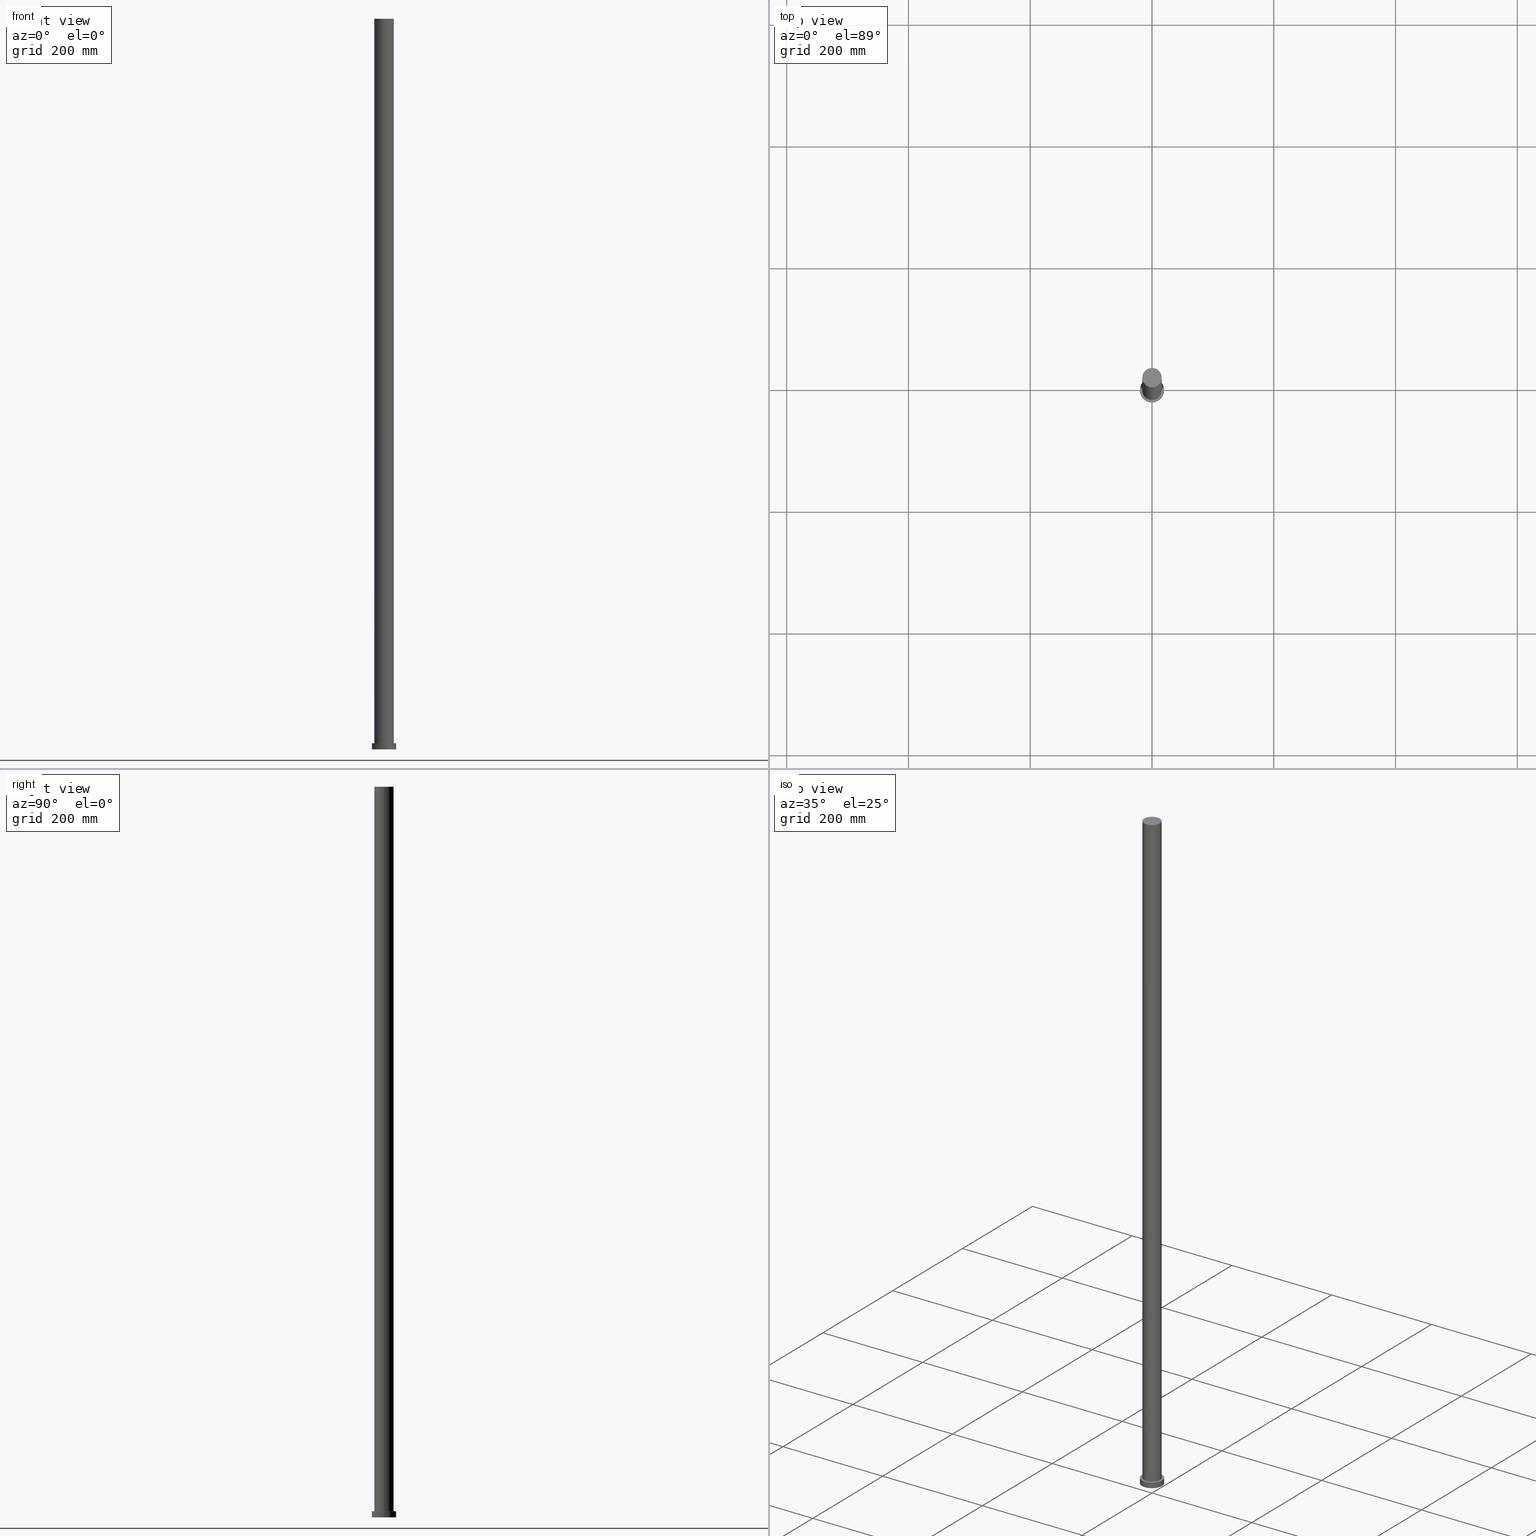
[diagram: canonical four-view strip — front | top / right | iso, engineering-drawing reading convention]
A machine part, canonical four-view strip (front | top / right | iso — engineering-drawing reading convention). The complete STEP part file that produces these views, byte-faithful:
ISO-10303-21;
HEADER;
FILE_DESCRIPTION (( 'STEP AP203' ),
    '1' );
FILE_NAME ('adc3.STEP',
    '2023-02-13T07:28:14',
    ( '' ),
    ( '' ),
    'SwSTEP 2.0',
    'SolidWorks 2019',
    '' );
FILE_SCHEMA (( 'CONFIG_CONTROL_DESIGN' ));
ENDSEC;

DATA;
#1 = DIRECTION ( 'NONE',  ( 0.000000000000000000, 0.000000000000000000, 1.000000000000000000 ) ) ;
#2 = DIRECTION ( 'NONE',  ( -0.000000000000000000, -0.000000000000000000, -1.000000000000000000 ) ) ;
#3 = AXIS2_PLACEMENT_3D ( 'NONE', #54, #159, #237 ) ;
#4 = PERSON_AND_ORGANIZATION ( #178, #148 ) ;
#5 = DIRECTION ( 'NONE',  ( -0.000000000000000000, -0.000000000000000000, -1.000000000000000000 ) ) ;
#6 = CARTESIAN_POINT ( 'NONE',  ( -16.00000000000000000, 0.000000000000000000, 1200.000000000000000 ) ) ;
#7 = PERSON_AND_ORGANIZATION ( #178, #148 ) ;
#8 = DIRECTION ( 'NONE',  ( -0.000000000000000000, -0.000000000000000000, -1.000000000000000000 ) ) ;
#9 = FACE_OUTER_BOUND ( 'NONE', #239, .T. ) ;
#10 = APPROVAL_PERSON_ORGANIZATION ( #4, #146, #24 ) ;
#11 = EDGE_CURVE ( 'NONE', #182, #208, #14, .T. ) ;
#12 = FACE_OUTER_BOUND ( 'NONE', #187, .T. ) ;
#13 = CC_DESIGN_PERSON_AND_ORGANIZATION_ASSIGNMENT ( #47, #50, ( #102 ) ) ;
#14 = CIRCLE ( 'NONE', #209, 20.00000000000000000 ) ;
#15 = ORIENTED_EDGE ( 'NONE', *, *, #73, .F. ) ;
#16 = ORIENTED_EDGE ( 'NONE', *, *, #11, .F. ) ;
#17 = CC_DESIGN_DATE_AND_TIME_ASSIGNMENT ( #86, #158, ( #169 ) ) ;
#18 = EDGE_LOOP ( 'NONE', ( #149, #93 ) ) ;
#19 = APPROVAL_PERSON_ORGANIZATION ( #7, #28, #171 ) ;
#20 = AXIS2_PLACEMENT_3D ( 'NONE', #173, #218, #134 ) ;
#21 = DIRECTION ( 'NONE',  ( -1.000000000000000000, 0.000000000000000000, 0.000000000000000000 ) ) ;
#22 = APPROVAL_PERSON_ORGANIZATION ( #136, #230, #106 ) ;
#23 = CARTESIAN_POINT ( 'NONE',  ( 0.000000000000000000, 0.000000000000000000, 0.000000000000000000 ) ) ;
#24 = APPROVAL_ROLE ( '' ) ;
#25 = DIRECTION ( 'NONE',  ( 1.000000000000000000, 0.000000000000000000, 0.000000000000000000 ) ) ;
#26 = DIRECTION ( 'NONE',  ( 0.000000000000000000, 0.000000000000000000, 1.000000000000000000 ) ) ;
#27 = VERTEX_POINT ( 'NONE', #114 ) ;
#28 = APPROVAL ( #196, 'NEUR�EN�' ) ;
#29 = DATE_TIME_ROLE ( 'classification_date' ) ;
#30 = PLANE ( 'NONE',  #214 ) ;
#31 = FACE_OUTER_BOUND ( 'NONE', #83, .T. ) ;
#32 = CC_DESIGN_APPROVAL ( #28, ( #150 ) ) ;
#33 = APPROVAL_DATE_TIME ( #191, #28 ) ;
#34 = ORIENTED_EDGE ( 'NONE', *, *, #89, .F. ) ;
#35 = DATE_AND_TIME ( #252, #215 ) ;
#36 = LOCAL_TIME ( 8, 28, 14.00000000000000000, #155 ) ;
#37 = CARTESIAN_POINT ( 'NONE',  ( 0.000000000000000000, 0.000000000000000000, 10.00000000000000000 ) ) ;
#38 = VERTEX_POINT ( 'NONE', #189 ) ;
#39 = AXIS2_PLACEMENT_3D ( 'NONE', #162, #97, #121 ) ;
#40 = EDGE_CURVE ( 'NONE', #208, #129, #161, .T. ) ;
#41 = PRODUCT_RELATED_PRODUCT_CATEGORY ( 'detail', '', ( #143 ) ) ;
#42 = COORDINATED_UNIVERSAL_TIME_OFFSET ( 1, 0, .AHEAD. ) ;
#43 = CARTESIAN_POINT ( 'NONE',  ( 0.000000000000000000, 0.000000000000000000, 1200.000000000000000 ) ) ;
#44 = DIRECTION ( 'NONE',  ( 1.000000000000000000, 0.000000000000000000, 0.000000000000000000 ) ) ;
#45 = DIRECTION ( 'NONE',  ( -0.000000000000000000, -0.000000000000000000, -1.000000000000000000 ) ) ;
#46 = DIRECTION ( 'NONE',  ( -0.000000000000000000, -0.000000000000000000, -1.000000000000000000 ) ) ;
#47 = PERSON_AND_ORGANIZATION ( #178, #148 ) ;
#48 = APPLICATION_PROTOCOL_DEFINITION ( 'international standard', 'config_control_design', 1994, #124 ) ;
#49 = VERTEX_POINT ( 'NONE', #85 ) ;
#50 = PERSON_AND_ORGANIZATION_ROLE ( 'classification_officer' ) ;
#51 = EDGE_CURVE ( 'NONE', #182, #38, #204, .T. ) ;
#52 = DIRECTION ( 'NONE',  ( 0.000000000000000000, 0.000000000000000000, 1.000000000000000000 ) ) ;
#53 =( GEOMETRIC_REPRESENTATION_CONTEXT ( 3 ) GLOBAL_UNCERTAINTY_ASSIGNED_CONTEXT ( ( #125 ) ) GLOBAL_UNIT_ASSIGNED_CONTEXT ( ( #131, #82, #133 ) ) REPRESENTATION_CONTEXT ( 'NONE', 'WORKASPACE' ) );
#54 = CARTESIAN_POINT ( 'NONE',  ( 0.000000000000000000, 0.000000000000000000, 1200.000000000000000 ) ) ;
#55 = PRODUCT_DEFINITION_SHAPE ( 'NONE', 'NONE',  #169 ) ;
#56 = CC_DESIGN_PERSON_AND_ORGANIZATION_ASSIGNMENT ( #236, #234, ( #150 ) ) ;
#57 = PLANE ( 'NONE',  #180 ) ;
#58 = ORIENTED_EDGE ( 'NONE', *, *, #51, .T. ) ;
#59 = AXIS2_PLACEMENT_3D ( 'NONE', #23, #200, #25 ) ;
#60 = ORIENTED_EDGE ( 'NONE', *, *, #51, .F. ) ;
#61 = EDGE_CURVE ( 'NONE', #91, #181, #210, .T. ) ;
#62 = AXIS2_PLACEMENT_3D ( 'NONE', #43, #45, #217 ) ;
#63 = CLOSED_SHELL ( 'NONE', ( #66, #194, #245, #183, #207, #250, #126 ) ) ;
#64 = FACE_OUTER_BOUND ( 'NONE', #157, .T. ) ;
#65 = FACE_OUTER_BOUND ( 'NONE', #18, .T. ) ;
#66 = ADVANCED_FACE ( 'NONE', ( #31 ), #74, .T. ) ;
#67 = PERSON_AND_ORGANIZATION ( #178, #148 ) ;
#68 = AXIS2_PLACEMENT_3D ( 'NONE', #188, #1, #87 ) ;
#69 = DIRECTION ( 'NONE',  ( 0.000000000000000000, 0.000000000000000000, 1.000000000000000000 ) ) ;
#70 = DIRECTION ( 'NONE',  ( -0.000000000000000000, -0.000000000000000000, -1.000000000000000000 ) ) ;
#71 = DIRECTION ( 'NONE',  ( 0.000000000000000000, 0.000000000000000000, 1.000000000000000000 ) ) ;
#72 = SECURITY_CLASSIFICATION_LEVEL ( 'unclassified' ) ;
#73 = EDGE_CURVE ( 'NONE', #49, #27, #241, .T. ) ;
#74 = CYLINDRICAL_SURFACE ( 'NONE', #226, 16.00000000000000000 ) ;
#75 = APPROVAL_DATE_TIME ( #240, #146 ) ;
#76 = CYLINDRICAL_SURFACE ( 'NONE', #39, 20.00000000000000000 ) ;
#77 = CC_DESIGN_PERSON_AND_ORGANIZATION_ASSIGNMENT ( #120, #176, ( #169 ) ) ;
#78 = DESIGN_CONTEXT ( 'detailed design', #124, 'design' ) ;
#79 = AXIS2_PLACEMENT_3D ( 'NONE', #84, #185, #110 ) ;
#80 = VECTOR ( 'NONE', #70, 1000.000000000000000 ) ;
#81 = CYLINDRICAL_SURFACE ( 'NONE', #142, 20.00000000000000000 ) ;
#82 =( NAMED_UNIT ( * ) PLANE_ANGLE_UNIT ( ) SI_UNIT ( $, .RADIAN. ) );
#83 = EDGE_LOOP ( 'NONE', ( #139, #249, #254, #247 ) ) ;
#84 = CARTESIAN_POINT ( 'NONE',  ( 0.000000000000000000, 0.000000000000000000, 0.000000000000000000 ) ) ;
#85 = CARTESIAN_POINT ( 'NONE',  ( 16.00000000000000000, 1.959434878635765131E-15, 1200.000000000000000 ) ) ;
#86 = DATE_AND_TIME ( #223, #130 ) ;
#87 = DIRECTION ( 'NONE',  ( 1.000000000000000000, 0.000000000000000000, 0.000000000000000000 ) ) ;
#88 = CARTESIAN_POINT ( 'NONE',  ( 0.000000000000000000, 0.000000000000000000, 10.00000000000000000 ) ) ;
#89 = EDGE_CURVE ( 'NONE', #208, #182, #123, .T. ) ;
#90 = COORDINATED_UNIVERSAL_TIME_OFFSET ( 1, 0, .AHEAD. ) ;
#91 = VERTEX_POINT ( 'NONE', #6 ) ;
#92 = DATE_AND_TIME ( #205, #36 ) ;
#93 = ORIENTED_EDGE ( 'NONE', *, *, #151, .T. ) ;
#94 = CC_DESIGN_SECURITY_CLASSIFICATION ( #102, ( #150 ) ) ;
#95 = DIRECTION ( 'NONE',  ( 0.000000000000000000, 0.000000000000000000, 1.000000000000000000 ) ) ;
#96 = DIRECTION ( 'NONE',  ( 1.000000000000000000, 0.000000000000000000, 0.000000000000000000 ) ) ;
#97 = DIRECTION ( 'NONE',  ( -0.000000000000000000, -0.000000000000000000, -1.000000000000000000 ) ) ;
#98 = CIRCLE ( 'NONE', #163, 16.00000000000000000 ) ;
#99 = EDGE_CURVE ( 'NONE', #181, #27, #153, .T. ) ;
#100 = VECTOR ( 'NONE', #46, 1000.000000000000000 ) ;
#101 = EDGE_LOOP ( 'NONE', ( #211, #229 ) ) ;
#102 = SECURITY_CLASSIFICATION ( '', '', #72 ) ;
#103 = APPLICATION_CONTEXT ( 'configuration controlled 3d designs of mechanical parts and assemblies' ) ;
#104 = ADVANCED_BREP_SHAPE_REPRESENTATION ( 'adc3', ( #112, #68 ), #53 ) ;
#105 = CC_DESIGN_PERSON_AND_ORGANIZATION_ASSIGNMENT ( #67, #238, ( #150 ) ) ;
#106 = APPROVAL_ROLE ( '' ) ;
#107 = AXIS2_PLACEMENT_3D ( 'NONE', #132, #202, #96 ) ;
#108 = CARTESIAN_POINT ( 'NONE',  ( 0.000000000000000000, 0.000000000000000000, 10.00000000000000000 ) ) ;
#109 = CARTESIAN_POINT ( 'NONE',  ( 0.000000000000000000, 0.000000000000000000, 1200.000000000000000 ) ) ;
#110 = DIRECTION ( 'NONE',  ( 1.000000000000000000, 0.000000000000000000, 0.000000000000000000 ) ) ;
#111 = ORIENTED_EDGE ( 'NONE', *, *, #61, .T. ) ;
#112 = MANIFOLD_SOLID_BREP ( 'P�idat vysunut�m3', #63 ) ;
#113 = CARTESIAN_POINT ( 'NONE',  ( 0.000000000000000000, 0.000000000000000000, 0.000000000000000000 ) ) ;
#114 = CARTESIAN_POINT ( 'NONE',  ( 16.00000000000000000, 1.959434878635765131E-15, 10.00000000000000000 ) ) ;
#115 = COORDINATED_UNIVERSAL_TIME_OFFSET ( 1, 0, .AHEAD. ) ;
#116 = CARTESIAN_POINT ( 'NONE',  ( 20.00000000000000000, 2.449293598294706513E-15, 10.00000000000000000 ) ) ;
#117 = DIRECTION ( 'NONE',  ( 1.000000000000000000, 0.000000000000000000, 0.000000000000000000 ) ) ;
#118 = CC_DESIGN_PERSON_AND_ORGANIZATION_ASSIGNMENT ( #156, #221, ( #143 ) ) ;
#119 = CARTESIAN_POINT ( 'NONE',  ( 20.00000000000000000, 2.449293598294706513E-15, 10.00000000000000000 ) ) ;
#120 = PERSON_AND_ORGANIZATION ( #178, #148 ) ;
#121 = DIRECTION ( 'NONE',  ( -1.000000000000000000, 0.000000000000000000, 0.000000000000000000 ) ) ;
#122 = CARTESIAN_POINT ( 'NONE',  ( -20.00000000000000000, 0.000000000000000000, 10.00000000000000000 ) ) ;
#123 = CIRCLE ( 'NONE', #248, 20.00000000000000000 ) ;
#124 = APPLICATION_CONTEXT ( 'configuration controlled 3d designs of mechanical parts and assemblies' ) ;
#125 = UNCERTAINTY_MEASURE_WITH_UNIT (LENGTH_MEASURE( 1.000000000000000082E-05 ), #131, 'distance_accuracy_value', 'NONE');
#126 = ADVANCED_FACE ( 'NONE', ( #65 ), #168, .T. ) ;
#127 = ORIENTED_EDGE ( 'NONE', *, *, #99, .F. ) ;
#128 = ORIENTED_EDGE ( 'NONE', *, *, #165, .F. ) ;
#129 = VERTEX_POINT ( 'NONE', #152 ) ;
#130 = LOCAL_TIME ( 8, 28, 14.00000000000000000, #219 ) ;
#131 =( LENGTH_UNIT ( ) NAMED_UNIT ( * ) SI_UNIT ( .MILLI., .METRE. ) );
#132 = CARTESIAN_POINT ( 'NONE',  ( 0.000000000000000000, 0.000000000000000000, 10.00000000000000000 ) ) ;
#133 =( NAMED_UNIT ( * ) SI_UNIT ( $, .STERADIAN. ) SOLID_ANGLE_UNIT ( ) );
#134 = DIRECTION ( 'NONE',  ( 1.000000000000000000, 0.000000000000000000, 0.000000000000000000 ) ) ;
#135 = CALENDAR_DATE ( 2023, 13, 2 ) ;
#136 = PERSON_AND_ORGANIZATION ( #178, #148 ) ;
#137 = ORIENTED_EDGE ( 'NONE', *, *, #40, .F. ) ;
#138 = APPROVAL_STATUS ( 'not_yet_approved' ) ;
#139 = ORIENTED_EDGE ( 'NONE', *, *, #151, .F. ) ;
#140 = APPROVAL_DATE_TIME ( #35, #230 ) ;
#141 = ORIENTED_EDGE ( 'NONE', *, *, #40, .T. ) ;
#142 = AXIS2_PLACEMENT_3D ( 'NONE', #108, #5, #21 ) ;
#143 = PRODUCT ( 'adc3', 'adc3', '', ( #172 ) ) ;
#144 = FACE_BOUND ( 'NONE', #164, .T. ) ;
#145 = EDGE_CURVE ( 'NONE', #91, #49, #98, .T. ) ;
#146 = APPROVAL ( #138, 'NEUR�EN�' ) ;
#147 = EDGE_LOOP ( 'NONE', ( #137, #16, #58, #216 ) ) ;
#148 = ORGANIZATION ( 'NEUR�EN�', 'NEUR�EN�', '' ) ;
#149 = ORIENTED_EDGE ( 'NONE', *, *, #145, .T. ) ;
#150 = PRODUCT_DEFINITION_FORMATION_WITH_SPECIFIED_SOURCE ( 'LIBOVOLN�', '', #143, .NOT_KNOWN. ) ;
#151 = EDGE_CURVE ( 'NONE', #49, #91, #251, .T. ) ;
#152 = CARTESIAN_POINT ( 'NONE',  ( 20.00000000000000000, 2.449293598294706513E-15, 0.000000000000000000 ) ) ;
#153 = CIRCLE ( 'NONE', #20, 16.00000000000000000 ) ;
#154 = CARTESIAN_POINT ( 'NONE',  ( 16.00000000000000000, 1.959434878635765131E-15, 1200.000000000000000 ) ) ;
#155 = COORDINATED_UNIVERSAL_TIME_OFFSET ( 1, 0, .AHEAD. ) ;
#156 = PERSON_AND_ORGANIZATION ( #178, #148 ) ;
#157 = EDGE_LOOP ( 'NONE', ( #15, #186, #111, #199 ) ) ;
#158 = DATE_TIME_ROLE ( 'creation_date' ) ;
#159 = DIRECTION ( 'NONE',  ( 0.000000000000000000, 0.000000000000000000, 1.000000000000000000 ) ) ;
#160 = AXIS2_PLACEMENT_3D ( 'NONE', #109, #52, #44 ) ;
#161 = LINE ( 'NONE', #119, #227 ) ;
#162 = CARTESIAN_POINT ( 'NONE',  ( 0.000000000000000000, 0.000000000000000000, 10.00000000000000000 ) ) ;
#163 = AXIS2_PLACEMENT_3D ( 'NONE', #166, #71, #224 ) ;
#164 = EDGE_LOOP ( 'NONE', ( #127, #128 ) ) ;
#165 = EDGE_CURVE ( 'NONE', #27, #181, #232, .T. ) ;
#166 = CARTESIAN_POINT ( 'NONE',  ( 0.000000000000000000, 0.000000000000000000, 1200.000000000000000 ) ) ;
#167 = DIRECTION ( 'NONE',  ( 1.000000000000000000, 0.000000000000000000, -0.000000000000000000 ) ) ;
#168 = PLANE ( 'NONE',  #3 ) ;
#169 = PRODUCT_DEFINITION ( 'NEZN�M�', '', #150, #78 ) ;
#170 = LOCAL_TIME ( 8, 28, 14.00000000000000000, #90 ) ;
#171 = APPROVAL_ROLE ( '' ) ;
#172 = MECHANICAL_CONTEXT ( 'NONE', #103, 'mechanical' ) ;
#173 = CARTESIAN_POINT ( 'NONE',  ( 0.000000000000000000, 0.000000000000000000, 10.00000000000000000 ) ) ;
#174 = CALENDAR_DATE ( 2023, 13, 2 ) ;
#175 = CARTESIAN_POINT ( 'NONE',  ( -16.00000000000000000, 0.000000000000000000, 1200.000000000000000 ) ) ;
#176 = PERSON_AND_ORGANIZATION_ROLE ( 'creator' ) ;
#177 = CARTESIAN_POINT ( 'NONE',  ( 0.000000000000000000, 0.000000000000000000, 1200.000000000000000 ) ) ;
#178 = PERSON ( 'NEUR�EN�', 'NEUR�EN�', 'NEUR�EN�', ('NEUR�EN�'), ('NEUR�EN�'), ('NEUR�EN�') ) ;
#179 = FACE_OUTER_BOUND ( 'NONE', #101, .T. ) ;
#180 = AXIS2_PLACEMENT_3D ( 'NONE', #37, #95, #243 ) ;
#181 = VERTEX_POINT ( 'NONE', #244 ) ;
#182 = VERTEX_POINT ( 'NONE', #122 ) ;
#183 = ADVANCED_FACE ( 'NONE', ( #144, #179 ), #57, .T. ) ;
#184 = CC_DESIGN_DATE_AND_TIME_ASSIGNMENT ( #92, #29, ( #102 ) ) ;
#185 = DIRECTION ( 'NONE',  ( 0.000000000000000000, 0.000000000000000000, 1.000000000000000000 ) ) ;
#186 = ORIENTED_EDGE ( 'NONE', *, *, #145, .F. ) ;
#187 = EDGE_LOOP ( 'NONE', ( #34, #141, #198, #60 ) ) ;
#188 = CARTESIAN_POINT ( 'NONE',  ( 0.000000000000000000, 0.000000000000000000, 0.000000000000000000 ) ) ;
#189 = CARTESIAN_POINT ( 'NONE',  ( -20.00000000000000000, 0.000000000000000000, 0.000000000000000000 ) ) ;
#190 = CIRCLE ( 'NONE', #59, 20.00000000000000000 ) ;
#191 = DATE_AND_TIME ( #135, #212 ) ;
#192 = FACE_OUTER_BOUND ( 'NONE', #147, .T. ) ;
#193 = DIRECTION ( 'NONE',  ( 0.000000000000000000, 0.000000000000000000, 1.000000000000000000 ) ) ;
#194 = ADVANCED_FACE ( 'NONE', ( #12 ), #76, .T. ) ;
#195 = DIRECTION ( 'NONE',  ( 1.000000000000000000, 0.000000000000000000, 0.000000000000000000 ) ) ;
#196 = APPROVAL_STATUS ( 'not_yet_approved' ) ;
#197 = VECTOR ( 'NONE', #8, 1000.000000000000000 ) ;
#198 = ORIENTED_EDGE ( 'NONE', *, *, #220, .T. ) ;
#199 = ORIENTED_EDGE ( 'NONE', *, *, #99, .T. ) ;
#200 = DIRECTION ( 'NONE',  ( 0.000000000000000000, 0.000000000000000000, 1.000000000000000000 ) ) ;
#201 = CC_DESIGN_APPROVAL ( #146, ( #102 ) ) ;
#202 = DIRECTION ( 'NONE',  ( 0.000000000000000000, 0.000000000000000000, 1.000000000000000000 ) ) ;
#203 = APPLICATION_PROTOCOL_DEFINITION ( 'international standard', 'config_control_design', 1994, #103 ) ;
#204 = LINE ( 'NONE', #233, #100 ) ;
#205 = CALENDAR_DATE ( 2023, 13, 2 ) ;
#206 = APPROVAL_STATUS ( 'not_yet_approved' ) ;
#207 = ADVANCED_FACE ( 'NONE', ( #9 ), #30, .F. ) ;
#208 = VERTEX_POINT ( 'NONE', #116 ) ;
#209 = AXIS2_PLACEMENT_3D ( 'NONE', #235, #26, #195 ) ;
#210 = LINE ( 'NONE', #175, #197 ) ;
#211 = ORIENTED_EDGE ( 'NONE', *, *, #11, .T. ) ;
#212 = LOCAL_TIME ( 8, 28, 14.00000000000000000, #115 ) ;
#213 = EDGE_CURVE ( 'NONE', #38, #129, #190, .T. ) ;
#214 = AXIS2_PLACEMENT_3D ( 'NONE', #113, #69, #167 ) ;
#215 = LOCAL_TIME ( 8, 28, 14.00000000000000000, #42 ) ;
#216 = ORIENTED_EDGE ( 'NONE', *, *, #213, .T. ) ;
#217 = DIRECTION ( 'NONE',  ( -1.000000000000000000, 0.000000000000000000, 0.000000000000000000 ) ) ;
#218 = DIRECTION ( 'NONE',  ( 0.000000000000000000, 0.000000000000000000, 1.000000000000000000 ) ) ;
#219 = COORDINATED_UNIVERSAL_TIME_OFFSET ( 1, 0, .AHEAD. ) ;
#220 = EDGE_CURVE ( 'NONE', #129, #38, #242, .T. ) ;
#221 = PERSON_AND_ORGANIZATION_ROLE ( 'design_owner' ) ;
#222 = ORIENTED_EDGE ( 'NONE', *, *, #220, .F. ) ;
#223 = CALENDAR_DATE ( 2023, 13, 2 ) ;
#224 = DIRECTION ( 'NONE',  ( 1.000000000000000000, 0.000000000000000000, 0.000000000000000000 ) ) ;
#225 = SHAPE_DEFINITION_REPRESENTATION ( #55, #104 ) ;
#226 = AXIS2_PLACEMENT_3D ( 'NONE', #177, #2, #228 ) ;
#227 = VECTOR ( 'NONE', #255, 1000.000000000000000 ) ;
#228 = DIRECTION ( 'NONE',  ( -1.000000000000000000, 0.000000000000000000, 0.000000000000000000 ) ) ;
#229 = ORIENTED_EDGE ( 'NONE', *, *, #89, .T. ) ;
#230 = APPROVAL ( #206, 'NEUR�EN�' ) ;
#231 = ORIENTED_EDGE ( 'NONE', *, *, #213, .F. ) ;
#232 = CIRCLE ( 'NONE', #107, 16.00000000000000000 ) ;
#233 = CARTESIAN_POINT ( 'NONE',  ( -20.00000000000000000, 0.000000000000000000, 10.00000000000000000 ) ) ;
#234 = PERSON_AND_ORGANIZATION_ROLE ( 'design_supplier' ) ;
#235 = CARTESIAN_POINT ( 'NONE',  ( 0.000000000000000000, 0.000000000000000000, 10.00000000000000000 ) ) ;
#236 = PERSON_AND_ORGANIZATION ( #178, #148 ) ;
#237 = DIRECTION ( 'NONE',  ( 1.000000000000000000, 0.000000000000000000, -0.000000000000000000 ) ) ;
#238 = PERSON_AND_ORGANIZATION_ROLE ( 'creator' ) ;
#239 = EDGE_LOOP ( 'NONE', ( #231, #222 ) ) ;
#240 = DATE_AND_TIME ( #174, #170 ) ;
#241 = LINE ( 'NONE', #154, #80 ) ;
#242 = CIRCLE ( 'NONE', #79, 20.00000000000000000 ) ;
#243 = DIRECTION ( 'NONE',  ( 1.000000000000000000, 0.000000000000000000, -0.000000000000000000 ) ) ;
#244 = CARTESIAN_POINT ( 'NONE',  ( -16.00000000000000000, 0.000000000000000000, 10.00000000000000000 ) ) ;
#245 = ADVANCED_FACE ( 'NONE', ( #192 ), #81, .T. ) ;
#246 = CC_DESIGN_APPROVAL ( #230, ( #169 ) ) ;
#247 = ORIENTED_EDGE ( 'NONE', *, *, #61, .F. ) ;
#248 = AXIS2_PLACEMENT_3D ( 'NONE', #88, #193, #117 ) ;
#249 = ORIENTED_EDGE ( 'NONE', *, *, #73, .T. ) ;
#250 = ADVANCED_FACE ( 'NONE', ( #64 ), #253, .T. ) ;
#251 = CIRCLE ( 'NONE', #160, 16.00000000000000000 ) ;
#252 = CALENDAR_DATE ( 2023, 13, 2 ) ;
#253 = CYLINDRICAL_SURFACE ( 'NONE', #62, 16.00000000000000000 ) ;
#254 = ORIENTED_EDGE ( 'NONE', *, *, #165, .T. ) ;
#255 = DIRECTION ( 'NONE',  ( -0.000000000000000000, -0.000000000000000000, -1.000000000000000000 ) ) ;
ENDSEC;
END-ISO-10303-21;
